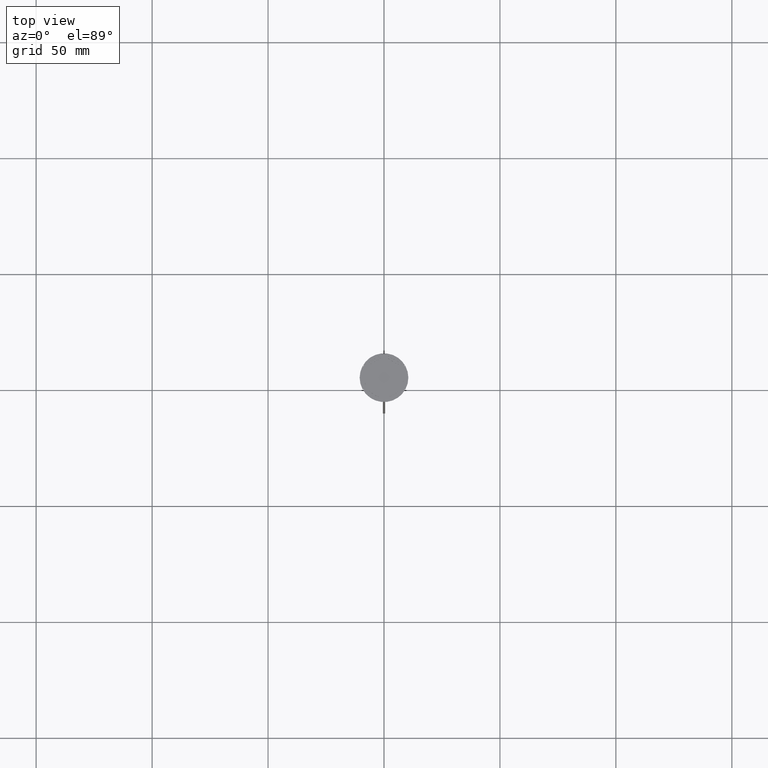
[diagram: clean part render]
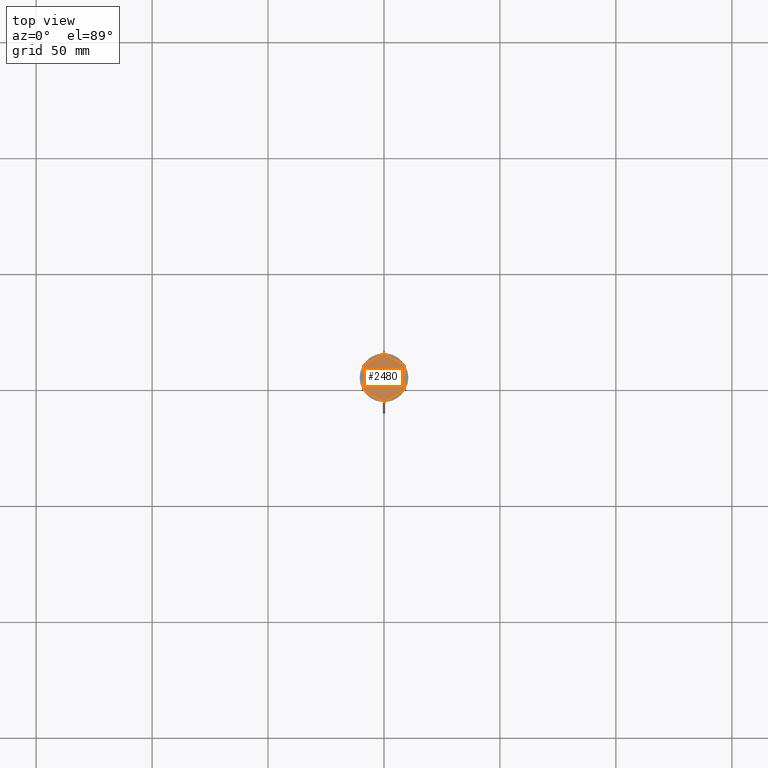
[diagram: same view with one face highlighted and labeled with its STEP entity id]
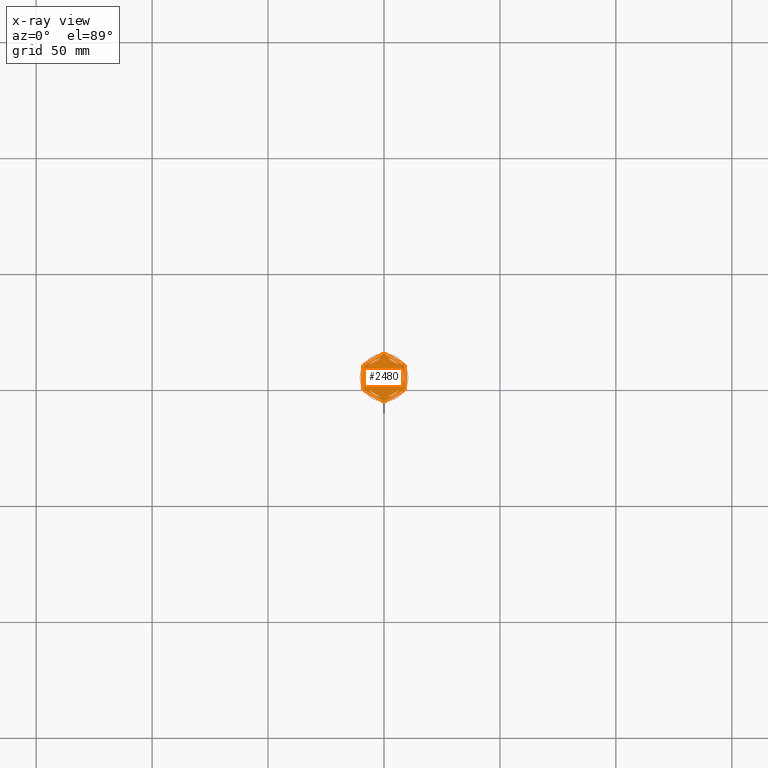
[diagram: x-ray of the same camera — body ghosted, the highlighted face saturated]
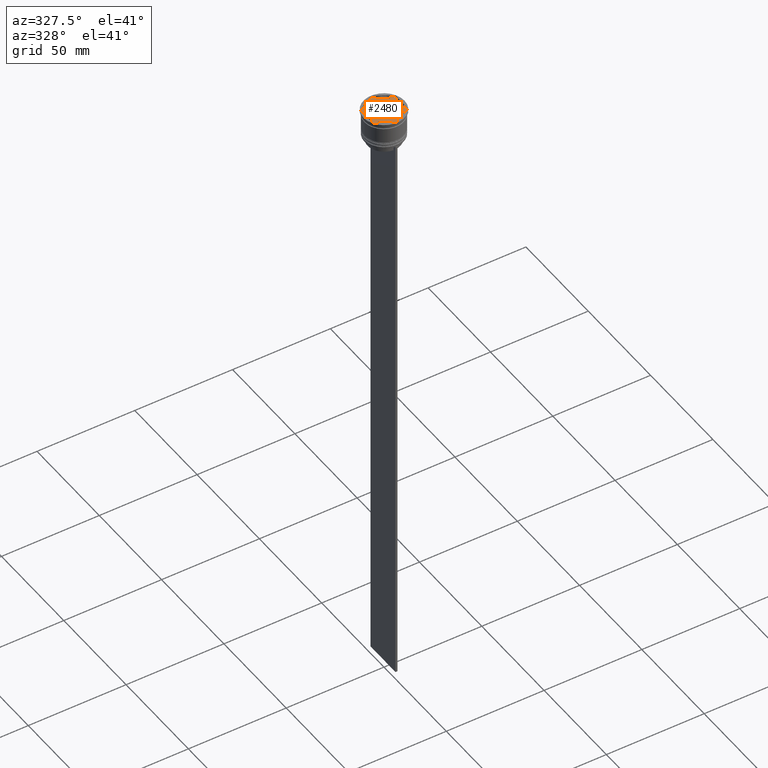
[diagram: same view with one face highlighted and labeled with its STEP entity id]
A machine part, top view. The second image highlights one B-rep face of the part: STEP entity #2480.
The next image is the same camera in x-ray: the body ghosted, the highlighted face saturated — about 0% of this face is hidden behind the body in this view.
A second angle (auxiliary view) of the same face is appended — the face is thin or edge-on in the first view.
In plain terms, the highlighted planar face has unit normal (0, 0, 1).
Its self-contained STEP definition (entity closure, byte-faithful):
#18 = EDGE_CURVE ( 'NONE', #1482, #2559, #1854, .T. ) ;
#27 = DIRECTION ( 'NONE',  ( 1.000000000000000000, 8.881784197001252323E-16, 0.000000000000000000 ) ) ;
#31 = CARTESIAN_POINT ( 'NONE',  ( 0.3430780618347050170, 10.19422863405994306, -1.000000000000000000 ) ) ;
#40 = LINE ( 'NONE', #2312, #2172 ) ;
#43 = ORIENTED_EDGE ( 'NONE', *, *, #18, .F. ) ;
#48 = CARTESIAN_POINT ( 'NONE',  ( -9.000000000000001776, -5.196152422706632912, -1.000000000000000000 ) ) ;
#53 = VERTEX_POINT ( 'NONE', #1473 ) ;
#56 = CARTESIAN_POINT ( 'NONE',  ( 0.3430780618347059052, -10.19422863405994306, -1.000000000000000000 ) ) ;
#61 = EDGE_CURVE ( 'NONE', #53, #1134, #2454, .T. ) ;
#63 = VERTEX_POINT ( 'NONE', #1431 ) ;
#77 = CIRCLE ( 'NONE', #1580, 10.19999999999999574 ) ;
#84 = VECTOR ( 'NONE', #2248, 1000.000000000000000 ) ;
#106 = ORIENTED_EDGE ( 'NONE', *, *, #2053, .F. ) ;
#116 = CARTESIAN_POINT ( 'NONE',  ( 0.000000000000000000, 0.000000000000000000, -1.000000000000000000 ) ) ;
#127 = EDGE_CURVE ( 'NONE', #644, #1652, #1267, .T. ) ;
#136 = EDGE_CURVE ( 'NONE', #1654, #2333, #1243, .T. ) ;
#184 = VERTEX_POINT ( 'NONE', #31 ) ;
#199 = CARTESIAN_POINT ( 'NONE',  ( -8.656921938165297092, 5.394228634059953009, -1.000000000000000000 ) ) ;
#201 = LINE ( 'NONE', #2270, #84 ) ;
#207 = CIRCLE ( 'NONE', #2017, 8.500000000000000000 ) ;
#221 = DIRECTION ( 'NONE',  ( 0.000000000000000000, 0.000000000000000000, 1.000000000000000000 ) ) ;
#226 = CARTESIAN_POINT ( 'NONE',  ( 1.512531407233452363, -8.364343891910017703, -1.000000000000000888 ) ) ;
#231 = CARTESIAN_POINT ( 'NONE',  ( 6.487468592766547637, -5.492062568641006060, -1.000000000000000888 ) ) ;
#238 = DIRECTION ( 'NONE',  ( -0.000000000000000000, -0.000000000000000000, -1.000000000000000000 ) ) ;
#243 = DIRECTION ( 'NONE',  ( -0.8660254037844385966, -0.5000000000000001110, 0.000000000000000000 ) ) ;
#245 = AXIS2_PLACEMENT_3D ( 'NONE', #1148, #2187, #2576 ) ;
#296 = CARTESIAN_POINT ( 'NONE',  ( 0.000000000000000000, 0.000000000000000000, -1.000000000000000000 ) ) ;
#298 = CIRCLE ( 'NONE', #804, 8.500000000000000000 ) ;
#310 = ORIENTED_EDGE ( 'NONE', *, *, #2228, .F. ) ;
#319 = CARTESIAN_POINT ( 'NONE',  ( -1.512531407233448366, -8.364343891910017703, -1.000000000000000888 ) ) ;
#333 = CARTESIAN_POINT ( 'NONE',  ( 0.000000000000000000, 0.000000000000000000, -1.000000000000000000 ) ) ;
#334 = ORIENTED_EDGE ( 'NONE', *, *, #1894, .F. ) ;
#337 = ORIENTED_EDGE ( 'NONE', *, *, #2455, .F. ) ;
#340 = CIRCLE ( 'NONE', #1846, 10.19999999999999574 ) ;
#351 = CARTESIAN_POINT ( 'NONE',  ( 0.000000000000000000, 0.000000000000000000, -1.000000000000000000 ) ) ;
#360 = EDGE_LOOP ( 'NONE', ( #2577, #337 ) ) ;
#373 = LINE ( 'NONE', #616, #1828 ) ;
#386 = FACE_OUTER_BOUND ( 'NONE', #1528, .T. ) ;
#392 = EDGE_CURVE ( 'NONE', #1899, #1668, #1723, .T. ) ;
#416 = FACE_BOUND ( 'NONE', #360, .T. ) ;
#448 = VERTEX_POINT ( 'NONE', #691 ) ;
#452 = CARTESIAN_POINT ( 'NONE',  ( 6.487468592766552078, 5.492062568641001619, -1.000000000000000888 ) ) ;
#478 = CARTESIAN_POINT ( 'NONE',  ( -8.000000000000000000, -2.872281323269016085, -1.000000000000000888 ) ) ;
#483 = VERTEX_POINT ( 'NONE', #1607 ) ;
#495 = ORIENTED_EDGE ( 'NONE', *, *, #569, .T. ) ;
#501 = DIRECTION ( 'NONE',  ( 1.000000000000000000, 0.000000000000000000, 0.000000000000000000 ) ) ;
#534 = CARTESIAN_POINT ( 'NONE',  ( 9.000000000000001776, -5.196152422706632024, -1.000000000000000000 ) ) ;
#542 = EDGE_LOOP ( 'NONE', ( #1518, #2011 ) ) ;
#550 = EDGE_CURVE ( 'NONE', #2135, #184, #1159, .T. ) ;
#569 = EDGE_CURVE ( 'NONE', #2244, #1134, #2189, .T. ) ;
#575 = DIRECTION ( 'NONE',  ( 1.000000000000000000, 0.000000000000000000, 0.000000000000000000 ) ) ;
#582 = LINE ( 'NONE', #971, #1690 ) ;
#612 = EDGE_CURVE ( 'NONE', #448, #483, #1574, .T. ) ;
#616 = CARTESIAN_POINT ( 'NONE',  ( -8.673617379884035472E-16, -9.237604307034013473, -1.000000000000000888 ) ) ;
#644 = VERTEX_POINT ( 'NONE', #2232 ) ;
#647 = VERTEX_POINT ( 'NONE', #989 ) ;
#650 = AXIS2_PLACEMENT_3D ( 'NONE', #2425, #1819, #2009 ) ;
#663 = DIRECTION ( 'NONE',  ( 0.8660254037844387076, -0.4999999999999997224, 0.000000000000000000 ) ) ;
#685 = AXIS2_PLACEMENT_3D ( 'NONE', #351, #1356, #1200 ) ;
#691 = CARTESIAN_POINT ( 'NONE',  ( 8.000000000000000000, 2.872281323269014752, -1.000000000000000888 ) ) ;
#720 = VERTEX_POINT ( 'NONE', #199 ) ;
#721 = DIRECTION ( 'NONE',  ( 1.000000000000000000, 0.000000000000000000, 0.000000000000000000 ) ) ;
#723 = ORIENTED_EDGE ( 'NONE', *, *, #1408, .F. ) ;
#737 = ORIENTED_EDGE ( 'NONE', *, *, #760, .F. ) ;
#742 = CARTESIAN_POINT ( 'NONE',  ( 9.000000000000001776, 4.799999999999988276, -1.000000000000000000 ) ) ;
#760 = EDGE_CURVE ( 'NONE', #1099, #2333, #1813, .T. ) ;
#794 = ORIENTED_EDGE ( 'NONE', *, *, #136, .T. ) ;
#798 = DIRECTION ( 'NONE',  ( -0.000000000000000000, -0.000000000000000000, -1.000000000000000000 ) ) ;
#802 = CARTESIAN_POINT ( 'NONE',  ( 9.000000000000001776, -4.799999999999988276, -1.000000000000000000 ) ) ;
#804 = AXIS2_PLACEMENT_3D ( 'NONE', #955, #2620, #1376 ) ;
#807 = VECTOR ( 'NONE', #1013, 1000.000000000000114 ) ;
#808 = VERTEX_POINT ( 'NONE', #226 ) ;
#810 = DIRECTION ( 'NONE',  ( -0.8660254037844385966, 0.4999999999999999445, 0.000000000000000000 ) ) ;
#814 = DIRECTION ( 'NONE',  ( 0.000000000000000000, -1.000000000000000000, 0.000000000000000000 ) ) ;
#818 = DIRECTION ( 'NONE',  ( 1.000000000000000000, 0.000000000000000000, 0.000000000000000000 ) ) ;
#830 = CARTESIAN_POINT ( 'NONE',  ( 0.000000000000000000, 0.000000000000000000, -1.000000000000000000 ) ) ;
#843 = DIRECTION ( 'NONE',  ( 0.000000000000000000, 0.000000000000000000, 1.000000000000000000 ) ) ;
#852 = CARTESIAN_POINT ( 'NONE',  ( 0.000000000000000000, 0.000000000000000000, -1.000000000000000000 ) ) ;
#882 = ORIENTED_EDGE ( 'NONE', *, *, #1332, .F. ) ;
#944 = EDGE_CURVE ( 'NONE', #1099, #2559, #1900, .T. ) ;
#955 = CARTESIAN_POINT ( 'NONE',  ( 0.000000000000000000, 0.000000000000000000, -1.000000000000000000 ) ) ;
#968 = EDGE_CURVE ( 'NONE', #647, #2132, #1841, .T. ) ;
#971 = CARTESIAN_POINT ( 'NONE',  ( -8.000000000000000000, -4.618802153517006737, -1.000000000000000888 ) ) ;
#979 = EDGE_CURVE ( 'NONE', #53, #184, #1354, .T. ) ;
#989 = CARTESIAN_POINT ( 'NONE',  ( -6.487468592766552078, -5.492062568641001619, -1.000000000000000888 ) ) ;
#996 = EDGE_CURVE ( 'NONE', #1654, #720, #77, .T. ) ;
#1009 = PLANE ( 'NONE',  #650 ) ;
#1013 = DIRECTION ( 'NONE',  ( 0.8660254037844384856, 0.5000000000000003331, -0.000000000000000000 ) ) ;
#1015 = CIRCLE ( 'NONE', #2103, 8.500000000000000000 ) ;
#1023 = CARTESIAN_POINT ( 'NONE',  ( -0.3430780618347024080, -10.19422863405994306, -1.000000000000000000 ) ) ;
#1032 = DIRECTION ( 'NONE',  ( 1.000000000000000000, 0.000000000000000000, 0.000000000000000000 ) ) ;
#1042 = CARTESIAN_POINT ( 'NONE',  ( -9.000000000000001776, 5.196152422706632024, -1.000000000000000000 ) ) ;
#1052 = DIRECTION ( 'NONE',  ( 1.000000000000000000, 0.000000000000000000, 0.000000000000000000 ) ) ;
#1074 = VERTEX_POINT ( 'NONE', #2016 ) ;
#1084 = ORIENTED_EDGE ( 'NONE', *, *, #612, .F. ) ;
#1085 = DIRECTION ( 'NONE',  ( 0.000000000000000000, 0.000000000000000000, 1.000000000000000000 ) ) ;
#1099 = VERTEX_POINT ( 'NONE', #1595 ) ;
#1103 = DIRECTION ( 'NONE',  ( 0.000000000000000000, 0.000000000000000000, 1.000000000000000000 ) ) ;
#1116 = ORIENTED_EDGE ( 'NONE', *, *, #127, .F. ) ;
#1134 = VERTEX_POINT ( 'NONE', #742 ) ;
#1148 = CARTESIAN_POINT ( 'NONE',  ( 0.000000000000000000, 0.000000000000000000, -1.000000000000000000 ) ) ;
#1157 = VECTOR ( 'NONE', #814, 1000.000000000000000 ) ;
#1159 = CIRCLE ( 'NONE', #685, 10.19999999999999574 ) ;
#1199 = FACE_BOUND ( 'NONE', #542, .T. ) ;
#1200 = DIRECTION ( 'NONE',  ( 1.000000000000000000, 1.598721155460225418E-14, 0.000000000000000000 ) ) ;
#1234 = EDGE_CURVE ( 'NONE', #1652, #644, #298, .T. ) ;
#1235 = VECTOR ( 'NONE', #1527, 1000.000000000000000 ) ;
#1243 = LINE ( 'NONE', #1042, #1157 ) ;
#1262 = ORIENTED_EDGE ( 'NONE', *, *, #996, .F. ) ;
#1267 = LINE ( 'NONE', #2308, #807 ) ;
#1270 = VERTEX_POINT ( 'NONE', #452 ) ;
#1272 = CARTESIAN_POINT ( 'NONE',  ( 0.000000000000000000, 10.39230484541326582, -1.000000000000000000 ) ) ;
#1306 = ORIENTED_EDGE ( 'NONE', *, *, #1319, .T. ) ;
#1319 = EDGE_CURVE ( 'NONE', #2135, #720, #1892, .T. ) ;
#1332 = EDGE_CURVE ( 'NONE', #63, #1899, #1015, .T. ) ;
#1335 = VERTEX_POINT ( 'NONE', #231 ) ;
#1343 = EDGE_CURVE ( 'NONE', #2244, #1074, #340, .T. ) ;
#1354 = LINE ( 'NONE', #1366, #2659 ) ;
#1356 = DIRECTION ( 'NONE',  ( -0.000000000000000000, -0.000000000000000000, -1.000000000000000000 ) ) ;
#1366 = CARTESIAN_POINT ( 'NONE',  ( 9.000000000000001776, 5.196152422706632912, -1.000000000000000000 ) ) ;
#1376 = DIRECTION ( 'NONE',  ( 1.000000000000000000, 0.000000000000000000, 0.000000000000000000 ) ) ;
#1404 = DIRECTION ( 'NONE',  ( 0.000000000000000000, 1.000000000000000000, 0.000000000000000000 ) ) ;
#1408 = EDGE_CURVE ( 'NONE', #483, #448, #207, .T. ) ;
#1415 = FACE_BOUND ( 'NONE', #1505, .T. ) ;
#1424 = CARTESIAN_POINT ( 'NONE',  ( 0.000000000000000000, 0.000000000000000000, -1.000000000000000000 ) ) ;
#1430 = CARTESIAN_POINT ( 'NONE',  ( 0.000000000000000000, 0.000000000000000000, -1.000000000000000000 ) ) ;
#1431 = CARTESIAN_POINT ( 'NONE',  ( -8.500000000000000000, 0.000000000000000000, -1.000000000000000000 ) ) ;
#1437 = EDGE_CURVE ( 'NONE', #808, #1335, #1583, .T. ) ;
#1438 = FACE_BOUND ( 'NONE', #1913, .T. ) ;
#1473 = CARTESIAN_POINT ( 'NONE',  ( 8.656921938165297092, 5.394228634059953897, -1.000000000000000000 ) ) ;
#1482 = VERTEX_POINT ( 'NONE', #56 ) ;
#1490 = DIRECTION ( 'NONE',  ( 1.000000000000000000, 0.000000000000000000, 0.000000000000000000 ) ) ;
#1491 = VECTOR ( 'NONE', #243, 1000.000000000000000 ) ;
#1505 = EDGE_LOOP ( 'NONE', ( #1986, #1116 ) ) ;
#1513 = AXIS2_PLACEMENT_3D ( 'NONE', #1751, #1103, #501 ) ;
#1518 = ORIENTED_EDGE ( 'NONE', *, *, #968, .F. ) ;
#1527 = DIRECTION ( 'NONE',  ( 0.000000000000000000, 1.000000000000000000, 0.000000000000000000 ) ) ;
#1528 = EDGE_LOOP ( 'NONE', ( #495, #2136, #2503, #1959, #1306, #1262, #794, #737, #1733, #43, #1575, #2306 ) ) ;
#1553 = AXIS2_PLACEMENT_3D ( 'NONE', #296, #1085, #1914 ) ;
#1570 = EDGE_LOOP ( 'NONE', ( #723, #1084 ) ) ;
#1574 = LINE ( 'NONE', #1786, #1675 ) ;
#1575 = ORIENTED_EDGE ( 'NONE', *, *, #1778, .T. ) ;
#1580 = AXIS2_PLACEMENT_3D ( 'NONE', #333, #1756, #721 ) ;
#1583 = CIRCLE ( 'NONE', #1936, 8.500000000000000000 ) ;
#1595 = CARTESIAN_POINT ( 'NONE',  ( -8.656921938165295316, -5.394228634059957450, -1.000000000000000000 ) ) ;
#1607 = CARTESIAN_POINT ( 'NONE',  ( 8.000000000000000000, -2.872281323269017417, -1.000000000000000888 ) ) ;
#1635 = DIRECTION ( 'NONE',  ( -0.000000000000000000, -0.000000000000000000, -1.000000000000000000 ) ) ;
#1648 = DIRECTION ( 'NONE',  ( -0.000000000000000000, -0.000000000000000000, -1.000000000000000000 ) ) ;
#1652 = VERTEX_POINT ( 'NONE', #1812 ) ;
#1654 = VERTEX_POINT ( 'NONE', #2609 ) ;
#1668 = VERTEX_POINT ( 'NONE', #2633 ) ;
#1675 = VECTOR ( 'NONE', #2605, 1000.000000000000000 ) ;
#1683 = ORIENTED_EDGE ( 'NONE', *, *, #392, .F. ) ;
#1690 = VECTOR ( 'NONE', #810, 1000.000000000000114 ) ;
#1723 = LINE ( 'NONE', #2574, #1235 ) ;
#1728 = AXIS2_PLACEMENT_3D ( 'NONE', #1430, #798, #575 ) ;
#1733 = ORIENTED_EDGE ( 'NONE', *, *, #944, .T. ) ;
#1751 = CARTESIAN_POINT ( 'NONE',  ( 0.000000000000000000, 0.000000000000000000, -1.000000000000000000 ) ) ;
#1756 = DIRECTION ( 'NONE',  ( -0.000000000000000000, -0.000000000000000000, -1.000000000000000000 ) ) ;
#1760 = DIRECTION ( 'NONE',  ( 0.000000000000000000, 0.000000000000000000, 1.000000000000000000 ) ) ;
#1770 = EDGE_LOOP ( 'NONE', ( #106, #1683, #882 ) ) ;
#1778 = EDGE_CURVE ( 'NONE', #1482, #1074, #201, .T. ) ;
#1786 = CARTESIAN_POINT ( 'NONE',  ( 7.999999999999998224, -4.618802153517008513, -1.000000000000000888 ) ) ;
#1812 = CARTESIAN_POINT ( 'NONE',  ( -1.512531407233451475, 8.364343891910017703, -1.000000000000000888 ) ) ;
#1813 = CIRCLE ( 'NONE', #1728, 10.19999999999999574 ) ;
#1819 = DIRECTION ( 'NONE',  ( 0.000000000000000000, 0.000000000000000000, 1.000000000000000000 ) ) ;
#1828 = VECTOR ( 'NONE', #2032, 1000.000000000000114 ) ;
#1841 = CIRCLE ( 'NONE', #245, 8.500000000000000000 ) ;
#1846 = AXIS2_PLACEMENT_3D ( 'NONE', #830, #1648, #27 ) ;
#1854 = CIRCLE ( 'NONE', #2669, 10.19999999999999574 ) ;
#1887 = VECTOR ( 'NONE', #663, 1000.000000000000114 ) ;
#1892 = LINE ( 'NONE', #1272, #1491 ) ;
#1894 = EDGE_CURVE ( 'NONE', #1270, #2297, #1979, .T. ) ;
#1899 = VERTEX_POINT ( 'NONE', #478 ) ;
#1900 = LINE ( 'NONE', #48, #1887 ) ;
#1913 = EDGE_LOOP ( 'NONE', ( #334, #310 ) ) ;
#1914 = DIRECTION ( 'NONE',  ( 1.000000000000000000, 0.000000000000000000, 0.000000000000000000 ) ) ;
#1936 = AXIS2_PLACEMENT_3D ( 'NONE', #116, #1760, #1490 ) ;
#1959 = ORIENTED_EDGE ( 'NONE', *, *, #550, .F. ) ;
#1979 = CIRCLE ( 'NONE', #1553, 8.500000000000000000 ) ;
#1986 = ORIENTED_EDGE ( 'NONE', *, *, #1234, .F. ) ;
#2009 = DIRECTION ( 'NONE',  ( 1.000000000000000000, 0.000000000000000000, -0.000000000000000000 ) ) ;
#2011 = ORIENTED_EDGE ( 'NONE', *, *, #2495, .F. ) ;
#2016 = CARTESIAN_POINT ( 'NONE',  ( 8.656921938165297092, -5.394228634059953009, -1.000000000000000000 ) ) ;
#2017 = AXIS2_PLACEMENT_3D ( 'NONE', #2065, #221, #1032 ) ;
#2032 = DIRECTION ( 'NONE',  ( -0.8660254037844387076, -0.4999999999999998335, 0.000000000000000000 ) ) ;
#2041 = CARTESIAN_POINT ( 'NONE',  ( 0.000000000000000000, 0.000000000000000000, -1.000000000000000000 ) ) ;
#2053 = EDGE_CURVE ( 'NONE', #1668, #63, #2123, .T. ) ;
#2065 = CARTESIAN_POINT ( 'NONE',  ( 0.000000000000000000, 0.000000000000000000, -1.000000000000000000 ) ) ;
#2093 = DIRECTION ( 'NONE',  ( 1.000000000000000000, 0.000000000000000000, 0.000000000000000000 ) ) ;
#2103 = AXIS2_PLACEMENT_3D ( 'NONE', #1424, #843, #818 ) ;
#2105 = DIRECTION ( 'NONE',  ( 0.8660254037844385966, -0.4999999999999999445, 0.000000000000000000 ) ) ;
#2123 = CIRCLE ( 'NONE', #1513, 8.500000000000000000 ) ;
#2132 = VERTEX_POINT ( 'NONE', #319 ) ;
#2135 = VERTEX_POINT ( 'NONE', #2330 ) ;
#2136 = ORIENTED_EDGE ( 'NONE', *, *, #61, .F. ) ;
#2172 = VECTOR ( 'NONE', #2105, 1000.000000000000114 ) ;
#2187 = DIRECTION ( 'NONE',  ( 0.000000000000000000, 0.000000000000000000, 1.000000000000000000 ) ) ;
#2189 = LINE ( 'NONE', #534, #2208 ) ;
#2208 = VECTOR ( 'NONE', #1404, 1000.000000000000000 ) ;
#2228 = EDGE_CURVE ( 'NONE', #2297, #1270, #40, .T. ) ;
#2232 = CARTESIAN_POINT ( 'NONE',  ( -6.487468592766553854, 5.492062568640999842, -1.000000000000000888 ) ) ;
#2244 = VERTEX_POINT ( 'NONE', #802 ) ;
#2248 = DIRECTION ( 'NONE',  ( 0.8660254037844385966, 0.5000000000000001110, 0.000000000000000000 ) ) ;
#2270 = CARTESIAN_POINT ( 'NONE',  ( 2.607697573705103160E-15, -10.39230484541326405, -1.000000000000000000 ) ) ;
#2297 = VERTEX_POINT ( 'NONE', #2415 ) ;
#2306 = ORIENTED_EDGE ( 'NONE', *, *, #1343, .F. ) ;
#2308 = CARTESIAN_POINT ( 'NONE',  ( 8.673617379884035472E-16, 9.237604307034013473, -1.000000000000000888 ) ) ;
#2312 = CARTESIAN_POINT ( 'NONE',  ( 8.000000000000000000, 4.618802153517006737, -1.000000000000000888 ) ) ;
#2330 = CARTESIAN_POINT ( 'NONE',  ( -0.3430780618347059052, 10.19422863405994306, -1.000000000000000000 ) ) ;
#2333 = VERTEX_POINT ( 'NONE', #2604 ) ;
#2378 = DIRECTION ( 'NONE',  ( -0.8660254037844385966, 0.5000000000000000000, 0.000000000000000000 ) ) ;
#2415 = CARTESIAN_POINT ( 'NONE',  ( 1.512531407233448366, 8.364343891910017703, -1.000000000000000888 ) ) ;
#2425 = CARTESIAN_POINT ( 'NONE',  ( 0.000000000000000000, 0.000000000000000000, -1.000000000000000000 ) ) ;
#2454 = CIRCLE ( 'NONE', #2491, 10.19999999999999574 ) ;
#2455 = EDGE_CURVE ( 'NONE', #1335, #808, #373, .T. ) ;
#2480 = ADVANCED_FACE ( 'NONE', ( #1438, #2639, #416, #1199, #2662, #1415, #386 ), #1009, .T. ) ;
#2491 = AXIS2_PLACEMENT_3D ( 'NONE', #852, #238, #1052 ) ;
#2495 = EDGE_CURVE ( 'NONE', #2132, #647, #582, .T. ) ;
#2503 = ORIENTED_EDGE ( 'NONE', *, *, #979, .T. ) ;
#2559 = VERTEX_POINT ( 'NONE', #1023 ) ;
#2574 = CARTESIAN_POINT ( 'NONE',  ( -8.000000000000000000, 4.618802153517004072, -1.000000000000000888 ) ) ;
#2576 = DIRECTION ( 'NONE',  ( 1.000000000000000000, 0.000000000000000000, 0.000000000000000000 ) ) ;
#2577 = ORIENTED_EDGE ( 'NONE', *, *, #1437, .F. ) ;
#2604 = CARTESIAN_POINT ( 'NONE',  ( -9.000000000000001776, -4.799999999999988276, -1.000000000000000000 ) ) ;
#2605 = DIRECTION ( 'NONE',  ( -1.877893248421449036E-16, -1.000000000000000000, 0.000000000000000000 ) ) ;
#2609 = CARTESIAN_POINT ( 'NONE',  ( -9.000000000000001776, 4.799999999999988276, -1.000000000000000000 ) ) ;
#2620 = DIRECTION ( 'NONE',  ( 0.000000000000000000, 0.000000000000000000, 1.000000000000000000 ) ) ;
#2633 = CARTESIAN_POINT ( 'NONE',  ( -8.000000000000000000, 2.872281323269016085, -1.000000000000000888 ) ) ;
#2639 = FACE_BOUND ( 'NONE', #1570, .T. ) ;
#2659 = VECTOR ( 'NONE', #2378, 1000.000000000000227 ) ;
#2662 = FACE_BOUND ( 'NONE', #1770, .T. ) ;
#2669 = AXIS2_PLACEMENT_3D ( 'NONE', #2041, #1635, #2093 ) ;